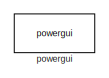
[diagram: root canvas - part 1/3, top left region]
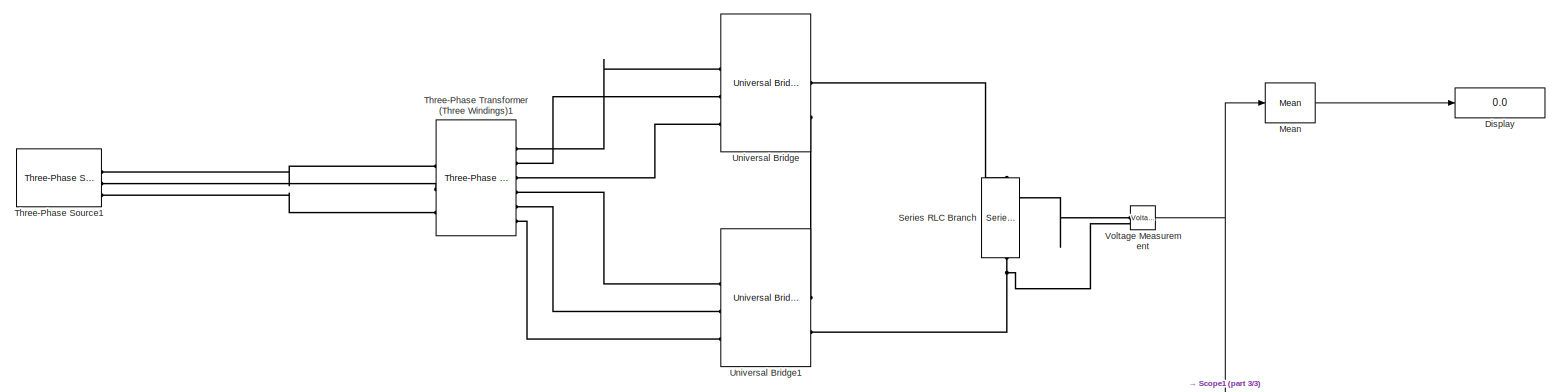
[diagram: root canvas - part 2/3, full width, middle band]
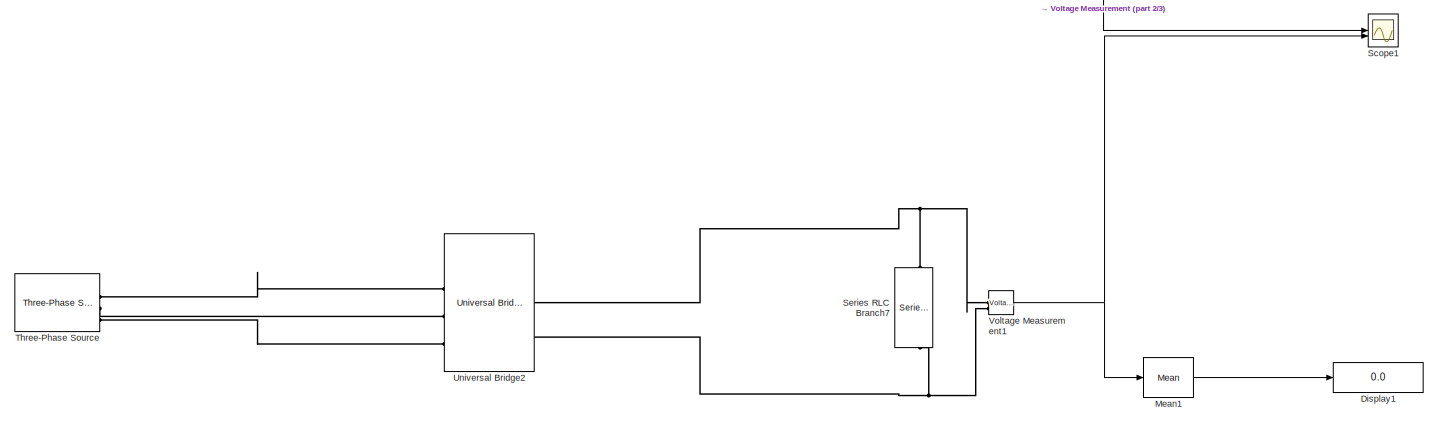
[diagram: root canvas - part 3/3, full width, bottom band]
MODEL slx_b1578322ab58
KIND model
CONFIG AbsTol = auto
CONFIG EnableMultiTasking = off
CONFIG FixedStep = auto
CONFIG MaxStep = auto
CONFIG MinStep = auto
CONFIG RelTol = 1e-3
CONFIG SampleTimeConstraint = Unconstrained
CONFIG SolverName = VariableStepAuto
CONFIG StartTime = 0.0
CONFIG StopTime = 1
BLOCK [Display] Display
  Decimation = 1
BLOCK [Display] Display1
  Decimation = 1
BLOCK [Reference] Mean  REF=spsMeanLib/Mean
  LibrarySourceBlock = sps_lib/Sensors and Measurements/Mean
  SourceBlock = spsMeanLib/Mean
  SourceType = Mean
BLOCK [Reference] Mean1  REF=spsMeanLib/Mean
  LibrarySourceBlock = sps_lib/Sensors and Measurements/Mean
  SourceBlock = spsMeanLib/Mean
  SourceType = Mean
BLOCK [Scope] Scope1
  Floating = off
  NumInputPorts = 2
  ScopeSpecificationString = Simulink.scopes.TimeScopeBlockCfg('CurrentConfiguration', extmgr.ConfigurationSet(extmgr.Configuration('Core','General UI',true),extmgr.Configuration('Core','Source UI',true),extmgr.Configuration('Sources','WiredSimulink',true,'DataLoggingVariableName','ScopeData1'),extmgr.Configuration('Visuals','Time Domain',true,'SerializedDisplays',{struct('MinYLimReal','461.77379','MaxYLimReal','2182.08609','...<+1497ch>
BLOCK [Reference] Series RLC Branch  REF=spsSeriesRLCBranchLib/Series RLC Branch
  LibrarySourceBlock = sps_lib/Passives/Series RLC Branch
  NameLocation = left
  SourceBlock = spsSeriesRLCBranchLib/Series RLC Branch
  SourceType = Series RLC Branch
BLOCK [Reference] Series RLC Branch7  REF=spsSeriesRLCBranchLib/Series RLC Branch
  LibrarySourceBlock = sps_lib/Passives/Series RLC Branch
  NameLocation = left
  SourceBlock = spsSeriesRLCBranchLib/Series RLC Branch
  SourceType = Series RLC Branch
BLOCK [Reference] Three-Phase Source  REF=spsThreePhaseSourceLib/Three-Phase Source
  LibrarySourceBlock = sps_lib/Sources/Three-Phase Source
  SourceBlock = spsThreePhaseSourceLib/Three-Phase Source
  SourceType = Three-Phase Source
BLOCK [Reference] Three-Phase Source1  REF=spsThreePhaseSourceLib/Three-Phase Source
  LibrarySourceBlock = sps_lib/Sources/Three-Phase Source
  SourceBlock = spsThreePhaseSourceLib/Three-Phase Source
  SourceType = Three-Phase Source
BLOCK [Reference] Three-Phase Transformer (Three Windings)1  REF=spsThreePhaseTransformerThreeWindingsLib/Three-Phase
Transformer
(Three Windings)
  LibrarySourceBlock = sps_lib/Power Grid Elements/Three-Phase\nTransformer\n(Three Windings)
  SourceBlock = spsThreePhaseTransformerThreeWindingsLib/Three-Phase\nTransformer\n(Three Windings)
  SourceType = Three-Phase Transformer (Three Windings)
BLOCK [Reference] Universal Bridge  REF=spsUniversalBridgeLib/Universal Bridge
  LibrarySourceBlock = sps_lib/Power Electronics/Universal Bridge
  SourceBlock = spsUniversalBridgeLib/Universal Bridge
  SourceType = Universal Bridge
BLOCK [Reference] Universal Bridge1  REF=spsUniversalBridgeLib/Universal Bridge
  LibrarySourceBlock = sps_lib/Power Electronics/Universal Bridge
  SourceBlock = spsUniversalBridgeLib/Universal Bridge
  SourceType = Universal Bridge
BLOCK [Reference] Universal Bridge2  REF=spsUniversalBridgeLib/Universal Bridge
  LibrarySourceBlock = sps_lib/Power Electronics/Universal Bridge
  SourceBlock = spsUniversalBridgeLib/Universal Bridge
  SourceType = Universal Bridge
BLOCK [Reference] Voltage Measurement  REF=spsVoltageMeasurementLib/Voltage Measurement
  LibrarySourceBlock = sps_lib/Sensors and Measurements/Voltage Measurement
  SourceBlock = spsVoltageMeasurementLib/Voltage Measurement
  SourceType = Voltage Measurement
  UserDataPersistent = on
BLOCK [Reference] Voltage Measurement1  REF=spsVoltageMeasurementLib/Voltage Measurement
  LibrarySourceBlock = sps_lib/Sensors and Measurements/Voltage Measurement
  SourceBlock = spsVoltageMeasurementLib/Voltage Measurement
  SourceType = Voltage Measurement
  UserDataPersistent = on
BLOCK [Reference] powergui  REF=sps_lib/powergui
  Priority = 1
  SourceBlock = sps_lib/powergui
  SourceType = PSB option menu block
LINE Mean1:1 -> Display1:1
LINE Mean:1 -> Display:1
NET Voltage Measurement1:1 -> Mean1:1, Scope1:2
NET Voltage Measurement:1 -> Mean:1, Scope1:1
PNET net1: Series RLC Branch7:LConn1 -- Universal Bridge2:RConn1 -- Voltage Measurement1:LConn1
PNET net2: Series RLC Branch7:RConn1 -- Universal Bridge2:RConn2 -- Voltage Measurement1:LConn2
PNET net3: Series RLC Branch:LConn1 -- Universal Bridge:RConn1 -- Voltage Measurement:LConn1
PNET net4: Series RLC Branch:RConn1 -- Universal Bridge1:RConn2 -- Voltage Measurement:LConn2
PLINE Three-Phase Source1:RConn1 -- Three-Phase Transformer (Three Windings)1:LConn1
PLINE Three-Phase Source1:RConn2 -- Three-Phase Transformer (Three Windings)1:LConn2
PLINE Three-Phase Source1:RConn3 -- Three-Phase Transformer (Three Windings)1:LConn3
PLINE Three-Phase Source:RConn1 -- Universal Bridge2:LConn1
PLINE Three-Phase Source:RConn2 -- Universal Bridge2:LConn2
PLINE Three-Phase Source:RConn3 -- Universal Bridge2:LConn3
PLINE Three-Phase Transformer (Three Windings)1:RConn1 -- Universal Bridge:LConn1
PLINE Three-Phase Transformer (Three Windings)1:RConn2 -- Universal Bridge:LConn2
PLINE Three-Phase Transformer (Three Windings)1:RConn3 -- Universal Bridge:LConn3
PLINE Three-Phase Transformer (Three Windings)1:RConn4 -- Universal Bridge1:LConn1
PLINE Three-Phase Transformer (Three Windings)1:RConn5 -- Universal Bridge1:LConn2
PLINE Three-Phase Transformer (Three Windings)1:RConn6 -- Universal Bridge1:LConn3
PLINE Universal Bridge1:RConn1 -- Universal Bridge:RConn2
note: NET lines group one-source signal fan-out (src -> all destinations, sorted); 1:1 wires keep LINE; PNET lines group multi-terminal physical nets as a canonical sorted terminal list (undirected conserving connections); 2-terminal nets keep the pairwise PLINE form
